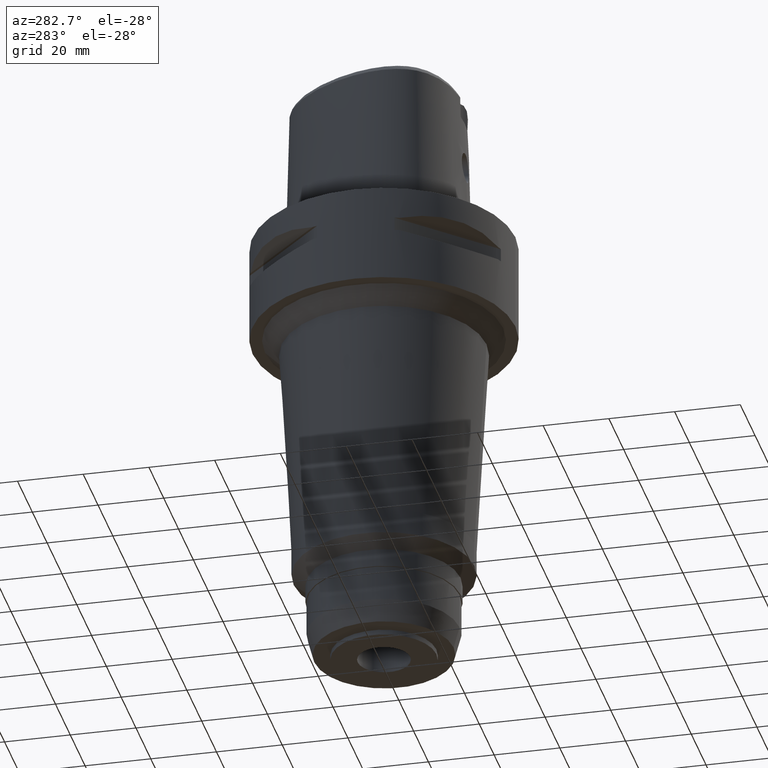
[diagram: clean part render]
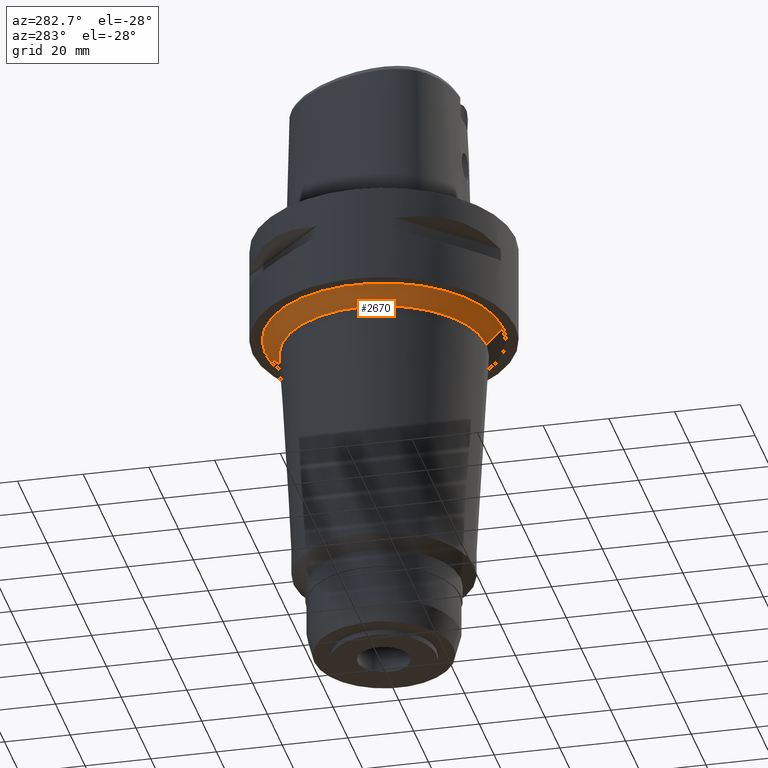
[diagram: same view with one face highlighted and labeled with its STEP entity id]
A machine part, auxiliary view. The second image highlights one B-rep face of the part: STEP entity #2670.
In plain terms, the highlighted conical surface has half-angle 45 deg.
Its self-contained STEP definition (entity closure, byte-faithful):
#558=CARTESIAN_POINT('',(0.E0,0.E0,-3.E1));
#559=DIRECTION('',(0.E0,0.E0,-1.E0));
#560=DIRECTION('',(0.E0,-1.E0,0.E0));
#561=AXIS2_PLACEMENT_3D('',#558,#559,#560);
#574=DIRECTION('',(0.E0,7.071067811863E-1,-7.071067811868E-1));
#575=VECTOR('',#574,7.071067811863E0);
#576=CARTESIAN_POINT('',(0.E0,-3.621989277435E1,-3.E1));
#577=LINE('',#576,#575);
#581=CARTESIAN_POINT('',(0.E0,0.E0,-3.5E1));
#582=DIRECTION('',(0.E0,0.E0,-1.E0));
#583=DIRECTION('',(0.E0,-1.E0,0.E0));
#584=AXIS2_PLACEMENT_3D('',#581,#582,#583);
#589=DIRECTION('',(0.E0,-7.071067811863E-1,-7.071067811868E-1));
#590=VECTOR('',#589,7.071067811863E0);
#591=CARTESIAN_POINT('',(0.E0,3.621989277435E1,-3.E1));
#592=LINE('',#591,#590);
#1686=CARTESIAN_POINT('',(0.E0,-3.621989277435E1,-3.E1));
#1687=CARTESIAN_POINT('',(0.E0,3.621989277435E1,-3.E1));
#1688=VERTEX_POINT('',#1686);
#1689=VERTEX_POINT('',#1687);
#1690=CARTESIAN_POINT('',(0.E0,3.121989277435E1,-3.5E1));
#1691=VERTEX_POINT('',#1690);
#1692=CARTESIAN_POINT('',(0.E0,-3.121989277435E1,-3.5E1));
#1693=VERTEX_POINT('',#1692);
#2656=CARTESIAN_POINT('',(0.E0,0.E0,-3.25E1));
#2657=DIRECTION('',(0.E0,0.E0,1.E0));
#2658=DIRECTION('',(0.E0,1.E0,0.E0));
#2659=AXIS2_PLACEMENT_3D('',#2656,#2657,#2658);
#2660=CONICAL_SURFACE('',#2659,3.371989277435E1,4.5E1);
#2662=ORIENTED_EDGE('',*,*,#2661,.F.);
#2663=ORIENTED_EDGE('',*,*,#2649,.F.);
#2665=ORIENTED_EDGE('',*,*,#2664,.T.);
#2667=ORIENTED_EDGE('',*,*,#2666,.T.);
#2668=EDGE_LOOP('',(#2662,#2663,#2665,#2667));
#2669=FACE_OUTER_BOUND('',#2668,.F.);
#562=CIRCLE('',#561,3.621989277435E1);
#585=CIRCLE('',#584,3.121989277435E1);
#2649=EDGE_CURVE('',#1688,#1689,#562,.T.);
#2661=EDGE_CURVE('',#1689,#1691,#592,.T.);
#2664=EDGE_CURVE('',#1688,#1693,#577,.T.);
#2666=EDGE_CURVE('',#1693,#1691,#585,.T.);
#2670=ADVANCED_FACE('',(#2669),#2660,.T.);